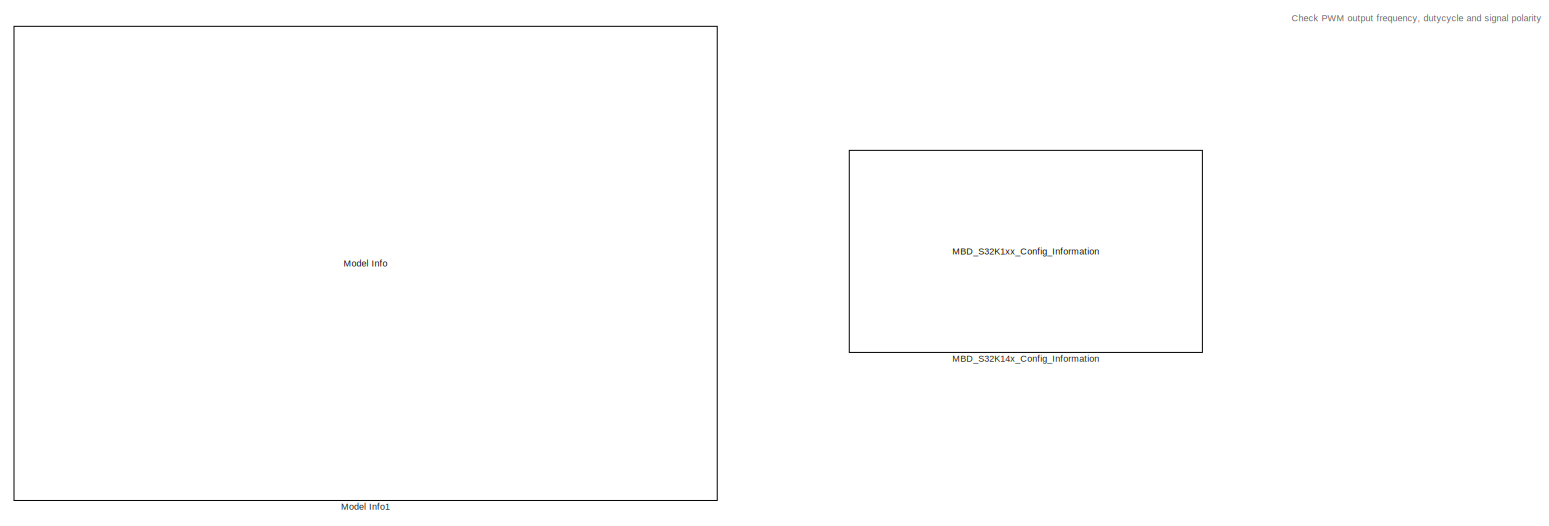
[diagram: root canvas - part 1/2, full width, top band]
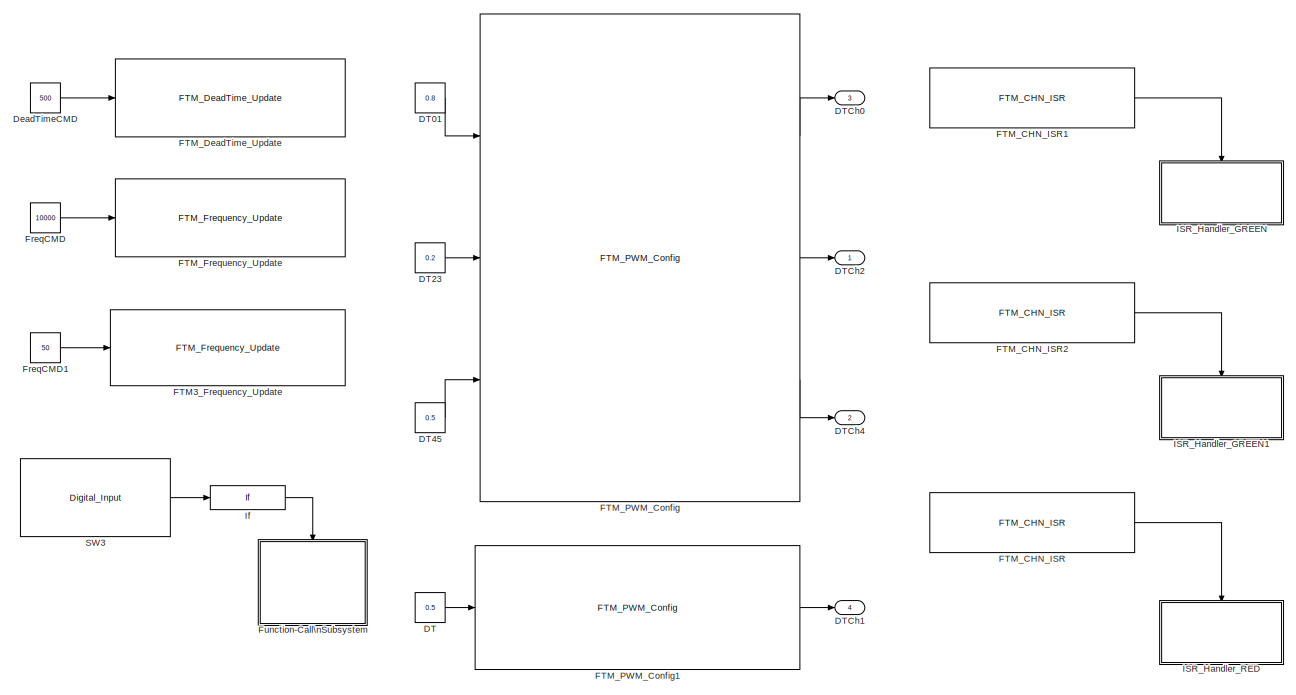
[diagram: root canvas - part 2/2, full width, bottom band]
MODEL ftm_complementary_pwm_s32k14x
KIND model
CONFIG InitFcn = mbd_s32k_consistency_checks(bdroot(gcs));
BLOCK [Constant] DT
  OutDataTypeStr = single
  SID = 1
  Value = 0.5
BLOCK [Constant] DT01
  OutDataTypeStr = single
  SID = 2
  Value = 0.8
BLOCK [Constant] DT23
  OutDataTypeStr = single
  SID = 3
  Value = 0.2
BLOCK [Constant] DT45
  OutDataTypeStr = single
  SID = 4
  Value = 0.5
BLOCK [Outport] DTCh0
  IconDisplay = Port number
  Port = 3
  SID = 42
BLOCK [Outport] DTCh1
  IconDisplay = Port number
  Port = 4
  SID = 43
BLOCK [Outport] DTCh2
  IconDisplay = Port number
  SID = 40
BLOCK [Outport] DTCh4
  IconDisplay = Port number
  Port = 2
  SID = 41
BLOCK [Constant] DeadTimeCMD
  OutDataTypeStr = uint32
  SID = 6
  Value = 500
BLOCK [Reference] FTM3_Frequency_Update  REF=mbd_s32k1xx_ec_toolbox/Motor Control Blocks/FTM Blocks/FTM_Frequency_Update
  Ports = [1]
  Priority = 1
  SID = 12
  SourceBlock = mbd_s32k1xx_ec_toolbox/Motor Control Blocks/FTM Blocks/FTM_Frequency_Update
  SourceType = FTM_s32k_freq_update_block
  ftmModule = 0
  ftmPwmUnits = Hz
  mcuTargetUpdate = on
BLOCK [Reference] FTM_CHN_ISR  REF=mbd_s32k1xx_ec_toolbox/Motor Control Blocks/FTM Blocks/FTM_CHN_ISR
  Ports = [0, 1]
  Priority = 10
  SID = 13
  SourceBlock = mbd_s32k1xx_ec_toolbox/Motor Control Blocks/FTM Blocks/FTM_CHN_ISR
  SourceType = FTM_s32k_chn_isr_block
  channel = 0
  ftmModule = 0
  isrlevel = 2
  mcuTargetUpdate = on
BLOCK [Reference] FTM_CHN_ISR1  REF=mbd_s32k1xx_ec_toolbox/Motor Control Blocks/FTM Blocks/FTM_CHN_ISR
  Ports = [0, 1]
  Priority = 10
  SID = 14
  SourceBlock = mbd_s32k1xx_ec_toolbox/Motor Control Blocks/FTM Blocks/FTM_CHN_ISR
  SourceType = FTM_s32k_chn_isr_block
  channel = 0
  ftmModule = 3
  isrlevel = 1
  mcuTargetUpdate = on
BLOCK [Reference] FTM_CHN_ISR2  REF=mbd_s32k1xx_ec_toolbox/Motor Control Blocks/FTM Blocks/FTM_CHN_ISR
  Ports = [0, 1]
  Priority = 10
  SID = 61
  SourceBlock = mbd_s32k1xx_ec_toolbox/Motor Control Blocks/FTM Blocks/FTM_CHN_ISR
  SourceType = FTM_s32k_chn_isr_block
  channel = 1
  ftmModule = 3
  isrlevel = 1
  mcuTargetUpdate = on
BLOCK [Reference] FTM_DeadTime_Update  REF=mbd_s32k1xx_ec_toolbox/Motor Control Blocks/FTM Blocks/FTM_DeadTime_Update
  Ports = [1]
  Priority = 1
  SID = 15
  SourceBlock = mbd_s32k1xx_ec_toolbox/Motor Control Blocks/FTM Blocks/FTM_DeadTime_Update
  SourceType = FTM_s32k_dead_time_update_block
  deadtimePrescaler = Divide by 1
  deadtimeUnits = Nanoseconds
  ftmModule = 0
  mcuTargetUpdate = on
BLOCK [Reference] FTM_Frequency_Update  REF=mbd_s32k1xx_ec_toolbox/Motor Control Blocks/FTM Blocks/FTM_Frequency_Update
  Ports = [1]
  Priority = 1
  SID = 16
  SourceBlock = mbd_s32k1xx_ec_toolbox/Motor Control Blocks/FTM Blocks/FTM_Frequency_Update
  SourceType = FTM_s32k_freq_update_block
  ftmModule = 0
  ftmPwmUnits = Hz
  mcuTargetUpdate = on
BLOCK [Reference] FTM_PWM_Config  REF=mbd_s32k1xx_ec_toolbox/Motor Control Blocks/FTM Blocks/FTM_PWM_Config
  Ports = [3, 3]
  Priority = 1
  SID = 54
  SourceBlock = mbd_s32k1xx_ec_toolbox/Motor Control Blocks/FTM Blocks/FTM_PWM_Config
  SourceType = FTM_s32k_pwm_config_block
  chTrigger0 = on
  chTrigger1 = on
  chTrigger2 = off
  chTrigger3 = off
  chTrigger4 = off
  chTrigger5 = off
  chTrigger6 = off
  chTrigger7 = off
  chan0En = on
  chan0Type = Complementary
  chan2En = on
  chan2Type = Complementary
  chan4En = on
  chan4Type = Complementary
  chan6En = off
  chan6Type = Independent
  chnMatch0 = off
  chnMatch1 = off
  chnMatch2 = off
  chnMatch3 = off
  chnMatch4 = off
  chnMatch5 = off
  chnMatch6 = off
  chnMatch7 = off
  deadtimeNs = 500
  deadtimePrescaler = Divide by 1
  deadtimeTicks = 40
  deadtimeUnits = Nanoseconds
  dutyCycleCh0 = 0.25
  dutyCycleCh1 = 0.25
  dutyCycleCh2 = 0.25
  dutyCycleCh3 = 0.25
  dutyCycleCh4 = 0.25
  dutyCycleCh5 = 0.25
  dutyCycleCh6 = 0.25
  dutyCycleCh7 = 0.25
  dutyCycleSim = on
  fault_disen_0 = off
  fault_disen_1 = off
  fault_disen_2 = off
  fault_disen_3 = off
  fault_filter_0 = off
  fault_filter_1 = off
  fault_filter_2 = off
  fault_filter_3 = off
  fault_pin_0 = None
  fault_pin_1 = None
  fault_pin_2 = None
  fault_pin_3 = None
  fault_polarity_0 = Active High
  fault_polarity_1 = Active high
  fault_polarity_2 = Active high
  fault_polarity_3 = Active high
  ftmMode = Edge-Aligned PWM
  ftmModule = 3
  ftmPeriod = 8000
  ftmPrescaler = Divide by 1
  ftmPwmUnits = Hz
  ftmSourceClock = 80 MHz
  initTrigger = off
  mcuTargetUpdate = on
  outFrequency = 10000
  outputComplem0 = Main inverted
  outputComplem2 = Main inverted
  outputComplem4 = Main inverted
  outputComplem6 = Main duplicated
  outputLevel0 = Low
  outputLevel1 = Low
  outputLevel2 = Low
  outputLevel3 = Low
  outputLevel4 = Low
  outputLevel5 = Low
  outputLevel6 = Low
  outputLevel7 = Low
  pinFtmCh0 = PTB8: [FTM3_CH0 | FTM Channel]
  pinFtmCh1 = PTB9: [FTM3_CH1 | FTM Channel]
  pinFtmCh2 = PTB10: [FTM3_CH2 | FTM Channel]
  pinFtmCh3 = PTB11: [FTM3_CH3 | FTM Channel]
  pinFtmCh4 = PTC10: [FTM3_CH4 | FTM Channel]
  pinFtmCh5 = PTC11: [FTM3_CH5 | FTM Channel]
  pinFtmCh6 = PTC12: [FTM3_CH6 | FTM Channel]
  pinFtmCh7 = None
  pinPolCh0 = Active High
  pinPolCh1 = Active Low
  pinPolCh2 = Active Low
  pinPolCh3 = Active Low
  pinPolCh4 = Active High
  pinPolCh5 = Active Low
  pinPolCh6 = Active Low
  pinPolCh7 = Active Low
  pwmFaultClearing = Fault control disabled
  pwmFaultFilterValue = 0
  pwmFaultInterrupt = off
  pwmFaultPinState = Safe Value
  pwmFaultPriority = 15
  pwmFaultProtection = off
  pwmSyncAutoClear = on
  pwmSyncCounterInitial = System Clock
  pwmSyncHwRouting = TRGMUX_FTM7
  pwmSyncInvert = System Clock
  pwmSyncMaxLoad = on
  pwmSyncMinLoad = on
  pwmSyncOutControl = System Clock
  pwmSyncOutMask = System Clock
  pwmSyncPoints = Update now
  pwmSyncTrg = Software trigger
  pwmSyncTrg0 = off
  pwmSyncTrg1 = off
  pwmSyncTrg2 = off
  reloadEnable = off
  reloadFrequency = 0
  reloadHCR = 0
  reloadHalfCycle = off
  reloadPriority = 15
  showAdvOpt = on
  startAfterInit = on
  swcontrol_enable = off
BLOCK [Reference] FTM_PWM_Config1  REF=mbd_s32k1xx_ec_toolbox/Motor Control Blocks/FTM Blocks/FTM_PWM_Config
  Ports = [1, 1]
  Priority = 1
  SID = 55
  SourceBlock = mbd_s32k1xx_ec_toolbox/Motor Control Blocks/FTM Blocks/FTM_PWM_Config
  SourceType = FTM_s32k_pwm_config_block
  chTrigger0 = on
  chTrigger1 = off
  chTrigger2 = off
  chTrigger3 = off
  chTrigger4 = off
  chTrigger5 = off
  chTrigger6 = off
  chTrigger7 = off
  chan0En = on
  chan0Type = Complementary
  chan2En = off
  chan2Type = Independent
  chan4En = off
  chan4Type = Independent
  chan6En = off
  chan6Type = Independent
  chnMatch0 = off
  chnMatch1 = off
  chnMatch2 = off
  chnMatch3 = off
  chnMatch4 = off
  chnMatch5 = off
  chnMatch6 = off
  chnMatch7 = off
  deadtimeNs = 0
  deadtimePrescaler = Divide by 1
  deadtimeTicks = 0
  deadtimeUnits = Nanoseconds
  dutyCycleCh0 = 0.25
  dutyCycleCh1 = 0.25
  dutyCycleCh2 = 0.25
  dutyCycleCh3 = 0.25
  dutyCycleCh4 = 0.25
  dutyCycleCh5 = 0.25
  dutyCycleCh6 = 0.25
  dutyCycleCh7 = 0.25
  dutyCycleSim = on
  fault_disen_0 = off
  fault_disen_1 = off
  fault_disen_2 = off
  fault_disen_3 = off
  fault_filter_0 = off
  fault_filter_1 = off
  fault_filter_2 = off
  fault_filter_3 = off
  fault_pin_0 = None
  fault_pin_1 = None
  fault_pin_2 = None
  fault_pin_3 = None
  fault_polarity_0 = Active High
  fault_polarity_1 = Active high
  fault_polarity_2 = Active high
  fault_polarity_3 = Active high
  ftmMode = Edge-Aligned PWM
  ftmModule = 0
  ftmPeriod = 25000
  ftmPrescaler = Divide by 64
  ftmPwmUnits = Hz
  ftmSourceClock = 80 MHz
  initTrigger = off
  mcuTargetUpdate = on
  outFrequency = 50
  outputComplem0 = Main duplicated
  outputComplem2 = Main duplicated
  outputComplem4 = Main duplicated
  outputComplem6 = Main duplicated
  outputLevel0 = Low
  outputLevel1 = Low
  outputLevel2 = Low
  outputLevel3 = Low
  outputLevel4 = Low
  outputLevel5 = Low
  outputLevel6 = Low
  outputLevel7 = Low
  pinFtmCh0 = PTC0: [FTM0_CH0 | FTM Channel]
  pinFtmCh1 = PTC1: [FTM0_CH1 | FTM Channel]
  pinFtmCh2 = PTB14: [FTM0_CH2 | FTM Channel]
  pinFtmCh3 = None
  pinFtmCh4 = PTB4: [FTM0_CH4 | FTM Channel]
  pinFtmCh5 = None
  pinFtmCh6 = PTA17: [FTM0_CH6 | FTM Channel]
  pinFtmCh7 = None
  pinPolCh0 = Active Low
  pinPolCh1 = Active Low
  pinPolCh2 = Active Low
  pinPolCh3 = Active Low
  pinPolCh4 = Active Low
  pinPolCh5 = Active Low
  pinPolCh6 = Active Low
  pinPolCh7 = Active Low
  pwmFaultClearing = Fault control disabled
  pwmFaultFilterValue = 0
  pwmFaultInterrupt = off
  pwmFaultPinState = Safe Value
  pwmFaultPriority = 15
  pwmFaultProtection = off
  pwmSyncAutoClear = on
  pwmSyncCounterInitial = System Clock
  pwmSyncHwRouting = TRGMUX_FTM7
  pwmSyncInvert = System Clock
  pwmSyncMaxLoad = on
  pwmSyncMinLoad = on
  pwmSyncOutControl = System Clock
  pwmSyncOutMask = System Clock
  pwmSyncPoints = Update now
  pwmSyncTrg = Software trigger
  pwmSyncTrg0 = off
  pwmSyncTrg1 = off
  pwmSyncTrg2 = off
  reloadEnable = off
  reloadFrequency = 0
  reloadHCR = 0
  reloadHalfCycle = off
  reloadPriority = 15
  showAdvOpt = on
  startAfterInit = on
  swcontrol_enable = off
BLOCK [Constant] FreqCMD
  OutDataTypeStr = uint32
  SID = 17
  Value = 10000
BLOCK [Constant] FreqCMD1
  OutDataTypeStr = uint32
  SID = 18
  Value = 50
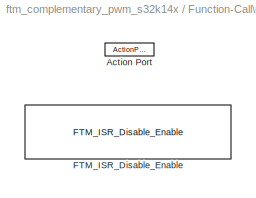
BLOCK [SubSystem] Function-Call\nSubsystem
  Ports = [0, 0, 0, 0, 0, 0, 0, 1]
  RequestExecContextInheritance = off
  SID = 19
  TreatAsAtomicUnit = on
  Variant = off
BLOCK [ActionPort] Function-Call\nSubsystem/Action Port
  SID = 20
BLOCK [Reference] Function-Call\nSubsystem/FTM_ISR_Disable_Enable  REF=mbd_s32k1xx_ec_toolbox/Motor Control Blocks/FTM Blocks/FTM_ISR_Disable_Enable
  Ports = []
  SID = 21
  SourceBlock = mbd_s32k1xx_ec_toolbox/Motor Control Blocks/FTM Blocks/FTM_ISR_Disable_Enable
  SourceType = FTM_s32k_isr_disen
  channel = channel 0
  dis = interrupt source Disable
  ftmModule = 0
  mcuTargetUpdate = 0
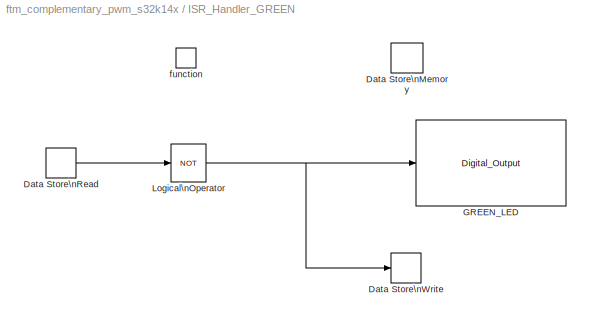
BLOCK [SubSystem] ISR_Handler_GREEN
  Ports = [0, 0, 0, 1]
  RequestExecContextInheritance = off
  SID = 22
  Variant = off
BLOCK [DataStoreMemory] ISR_Handler_GREEN/Data Store\nMemory
  OutDataTypeStr = boolean
  ReadBeforeWriteMsg = warning
  SID = 24
  ShowAdditionalParam = off
  WriteAfterReadMsg = warning
  WriteAfterWriteMsg = warning
BLOCK [DataStoreRead] ISR_Handler_GREEN/Data Store\nRead
  Ports = [0, 1]
  SID = 25
BLOCK [DataStoreWrite] ISR_Handler_GREEN/Data Store\nWrite
  Ports = [1]
  SID = 26
BLOCK [Reference] ISR_Handler_GREEN/GREEN_LED  REF=mbd_s32k1xx_ec_toolbox/GPIO Blocks/Digital_Output
  Ports = [1]
  SID = 27
  SourceBlock = mbd_s32k1xx_ec_toolbox/GPIO Blocks/Digital_Output
  SourceType = gpio_s32k_output
  drive_strength = High
  gpio_pin = PTD16: [PTD16 | Port D I/O]
  init_val = Low
BLOCK [Logic] ISR_Handler_GREEN/Logical\nOperator
  AllPortsSameDT = off
  Operator = NOT
  OutDataTypeStr = boolean
  Ports = [1, 1]
  SID = 28
BLOCK [TriggerPort] ISR_Handler_GREEN/function
  Ports = []
  SID = 23
  StatesWhenEnabling = held
  TriggerType = function-call
  VariantControl = Variant
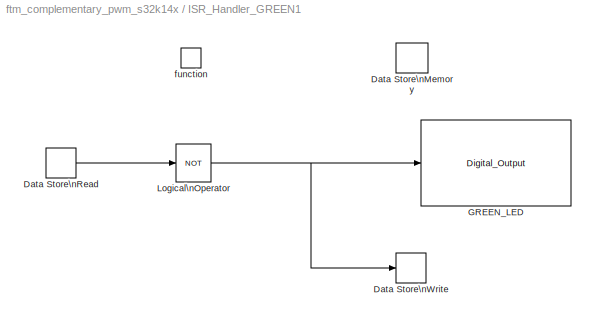
BLOCK [SubSystem] ISR_Handler_GREEN1
  Ports = [0, 0, 0, 1]
  RequestExecContextInheritance = off
  SID = 62
  Variant = off
BLOCK [DataStoreMemory] ISR_Handler_GREEN1/Data Store\nMemory
  DataStoreName = C
  OutDataTypeStr = boolean
  ReadBeforeWriteMsg = warning
  SID = 64
  ShowAdditionalParam = off
  WriteAfterReadMsg = warning
  WriteAfterWriteMsg = warning
BLOCK [DataStoreRead] ISR_Handler_GREEN1/Data Store\nRead
  DataStoreName = C
  Ports = [0, 1]
  SID = 70
BLOCK [DataStoreWrite] ISR_Handler_GREEN1/Data Store\nWrite
  DataStoreName = C
  Ports = [1]
  SID = 69
BLOCK [Reference] ISR_Handler_GREEN1/GREEN_LED  REF=mbd_s32k1xx_ec_toolbox/GPIO Blocks/Digital_Output
  Ports = [1]
  SID = 67
  SourceBlock = mbd_s32k1xx_ec_toolbox/GPIO Blocks/Digital_Output
  SourceType = gpio_s32k_output
  drive_strength = High
  gpio_pin = PTD0: [PTD0 | Port D I/O]
  init_val = Low
BLOCK [Logic] ISR_Handler_GREEN1/Logical\nOperator
  AllPortsSameDT = off
  Operator = NOT
  OutDataTypeStr = boolean
  Ports = [1, 1]
  SID = 68
BLOCK [TriggerPort] ISR_Handler_GREEN1/function
  Ports = []
  SID = 63
  StatesWhenEnabling = held
  TriggerType = function-call
  VariantControl = Variant
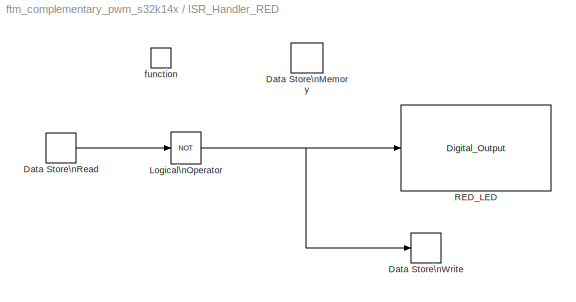
BLOCK [SubSystem] ISR_Handler_RED
  Ports = [0, 0, 0, 1]
  RequestExecContextInheritance = off
  SID = 29
  Variant = off
BLOCK [DataStoreMemory] ISR_Handler_RED/Data Store\nMemory
  DataStoreName = B
  OutDataTypeStr = boolean
  ReadBeforeWriteMsg = warning
  SID = 31
  ShowAdditionalParam = off
  WriteAfterReadMsg = warning
  WriteAfterWriteMsg = warning
BLOCK [DataStoreRead] ISR_Handler_RED/Data Store\nRead
  DataStoreName = B
  Ports = [0, 1]
  SID = 32
BLOCK [DataStoreWrite] ISR_Handler_RED/Data Store\nWrite
  DataStoreName = B
  Ports = [1]
  SID = 33
BLOCK [Logic] ISR_Handler_RED/Logical\nOperator
  AllPortsSameDT = off
  Operator = NOT
  OutDataTypeStr = boolean
  Ports = [1, 1]
  SID = 34
BLOCK [Reference] ISR_Handler_RED/RED_LED  REF=mbd_s32k1xx_ec_toolbox/GPIO Blocks/Digital_Output
  Ports = [1]
  SID = 35
  SourceBlock = mbd_s32k1xx_ec_toolbox/GPIO Blocks/Digital_Output
  SourceType = gpio_s32k_output
  drive_strength = High
  gpio_pin = PTD15: [PTD15 | Port D I/O]
  init_val = Low
BLOCK [TriggerPort] ISR_Handler_RED/function
  Ports = []
  SID = 30
  StatesWhenEnabling = held
  TriggerType = function-call
  VariantControl = Variant
BLOCK [If] If
  IfExpression = u1 == 1
  Ports = [1, 1]
  SID = 36
  ShowElse = off
BLOCK [Reference] MBD_S32K14x_Config_Information  REF=mbd_s32k1xx_ec_toolbox/MBD_S32K1xx_Config_Information
  ADC_PcrCheckEnDis = on
  AMMCLIB_PcrCheckEnDis = on
  CMP_PcrCheckEnDis = on
  CSEc_PcrCheckEnDis = on
  ConfigParams_PcrCheckEnDis = on
  FM_PcrCheckEnDis = on
  FTM_Dual_Edge_Inputs_PcrCheckEnDis = on
  FTM_Hall_Sensor_Inputs_PcrCheckEnDis = on
  FTM_Input_Edge_Inputs_PcrCheckEnDis = on
  FTM_PWM_PcrCheckEnDis = on
  FTM_Quadrature_Inputs_PcrCheckEnDis = on
  FlexCAN_PcrCheckEnDis = on
  FlexIO_PcrCheckEnDis = on
  GPIO_InputPcrCheckEnDis = on
  GPIO_OutputPcrCheckEnDis = on
  LIN_PcrCheckEnDis = on
  LPI2C_PcrCheckEnDis = on
  LPSPI_PcrCheckEnDis = on
  LPTMR_PcrCheckEnDis = on
  LPUART_PcrCheckEnDis = on
  ModelRef_PcrCheckEnDis = on
  PDB0_PcrCheckEnDis = on
  PIT_PcrCheckEnDis = on
  Ports = []
  Profile_PcrCheckEnDis = on
  RTC_PcrCheckEnDis = on
  SBC_PcrCheckEnDis = on
  SID = 57
  SourceBlock = mbd_s32k1xx_ec_toolbox/MBD_S32K1xx_Config_Information
  SourceType = MBDTBX_EC_S32K
  WDOG_PcrCheckEnDis = on
  config_params = []
  disp_str = Target : S32K144-64KB_SRAM\nPackage : 100-pin\nSystem clock : 80 MHz\nXTAL clock : External 8 MHz\nCompiler : IAR\nTarget Type : FLASH\nDownload Code after build : off\nStep Tick Interrupt Priority : 15
  ds_import_enable = on
  eDMA_PcrCheckEnDis = on
  gcc_target_assemble_opts = -mcpu=cortex-m4 -mthumb -mfloat-abi=hard -mfpu=fpv4-sp-d16 -g
  gcc_target_compile_opts = -mcpu=cortex-m4 -mthumb -mfloat-abi=hard -mfpu=fpv4-sp-d16 -O1 -g -gstrict-dwarf
  gcc_target_default_lcf = on
  gcc_target_link_opts = -mcpu=cortex-m4 -mthumb -mfloat-abi=hard -mfpu=fpv4-sp-d16
  gcc_target_user_lcf = S32K144_48_flash.ld
  ghs_target_assemble_opts = -cpu=cortexm4f -fpu=vfpv4_d16
  ghs_target_compile_opts = -cpu=cortexm4f -thumb -DARM_MATH_CM4 -fpu=vfpv4_d16 -fsingle -Ogeneral -Wundef -Wimplicit-int -Wshadow -Wtrigraphs --no_commons --gnu_asm -gnu99 -gdwarf-2 -G
  ghs_target_default_lcf = on
  ghs_target_link_opts = -cpu=cortexm4f -thumb -fpu=vfpv4_d16
  ghs_target_user_lcf = S32K144_48_flash.ld
  iar_target_assemble_opts = --cpu Cortex-M4F --thumb --fpu VFPv4_sp
  iar_target_compile_opts = --cpu=Cortex-M4F --thumb --fpu=VFPv4_sp -Ol -e --debug --dlib_config normal
  iar_target_default_lcf = on
  iar_target_link_opts = --no_exceptions --vfe --inline
  iar_target_user_lcf = S32K144_48_flash.icf
  mbdt_ver = 0
  mcu_steptick_prio = 15
  mcu_steptick_timer = LPIT Channel 0
  mcu_system_clock_freq = 80
  mcu_target_name = S32K144
  mcu_target_package = 100-LQFP
  mcu_target_sram_size = 48KB
  mcu_xtal_freq = External 8
  pil_download_enable = off
  pil_download_rate = 57600
  pil_opensda_drive = Custom
  pil_opensda_drive_custom = D
  pil_uart_instance = 0
  pil_uart_rx = PTA2: [LPUART0_RX | Receive]
  pil_uart_tx = PTA3: [LPUART0_TX | Transmit]
  rbl_com_port = Custom
  rbl_com_port_custom = COM1
  rbl_download_enable = on
  rbl_download_interface = OpenSDA
  rbl_restart_request = off
  rbl_start_delay = 5000
  target_compiler = GCC
  target_memory = FLASH
BLOCK [Reference] Model Info1  REF=simulink/Model-Wide\nUtilities/Model Info
  DisplayStringWithTags = Model Name: %<ModelName>\n\nDescription: %<Description>
  Frame = off
  HorizontalTextAlignment = Left
  LeftAlignmentValue = 0.02
  MaskDisplayString = Model Name: ftm_complementary_pwm_s32k14x\\n\\nDescription: This sample shows how to use FTM modules to generate PWM signals for the S32K144 MCUs using\\nthe Complementary PWM output mode.\\nThe model generates  Edge Aligned PWM signals on Ch0/Ch1, Ch2/Ch3 and Ch4/Ch5 outputs of the FTM3 module\\nand on Ch0/Ch1 outputs of the FTM0 module\\n\\nValidation:\\nConnect pin J1.5   (PTB8)  to the scope t...<+1154ch>
  Ports = []
  SID = 53
  SourceBlock = simulink/Model-Wide\nUtilities/Model Info
  SourceProductBaseCode = SL
  SourceProductName = Simulink
  SourceType = CMBlock
BLOCK [Reference] SW3  REF=mbd_s32k1xx_ec_toolbox/GPIO Blocks/Digital_Input
  Ports = [0, 1]
  SID = 39
  SourceBlock = mbd_s32k1xx_ec_toolbox/GPIO Blocks/Digital_Input
  SourceType = gpio_s32k_input
  gpio_pin = PTC12: [PTC12 | Port C I/O]
  passive_filter = on
  pull_resistor = None
ANNOTATION (root): \n \n Check PWM output frequency, dutycycle and signal polarity \n \n \n Check the deadband insertion delay between paired channels \n
LINE DT01:1 -> FTM_PWM_Config:1
LINE DT23:1 -> FTM_PWM_Config:2
LINE DT45:1 -> FTM_PWM_Config:3
LINE DT:1 -> FTM_PWM_Config1:1
LINE DeadTimeCMD:1 -> FTM_DeadTime_Update:1
LINE FTM_CHN_ISR1:1 -> ISR_Handler_GREEN:trigger
LINE FTM_CHN_ISR2:1 -> ISR_Handler_GREEN1:trigger
LINE FTM_CHN_ISR:1 -> ISR_Handler_RED:trigger
LINE FTM_PWM_Config1:1 -> DTCh1:1
LINE FTM_PWM_Config:1 -> DTCh0:1
LINE FTM_PWM_Config:2 -> DTCh2:1
LINE FTM_PWM_Config:3 -> DTCh4:1
LINE FreqCMD1:1 -> FTM3_Frequency_Update:1
LINE FreqCMD:1 -> FTM_Frequency_Update:1
LINE ISR_Handler_GREEN/Data Store\nRead:1 -> ISR_Handler_GREEN/Logical\nOperator:1
NET ISR_Handler_GREEN/Logical\nOperator:1 -> ISR_Handler_GREEN/Data Store\nWrite:1, ISR_Handler_GREEN/GREEN_LED:1
LINE ISR_Handler_GREEN1/Data Store\nRead:1 -> ISR_Handler_GREEN1/Logical\nOperator:1
NET ISR_Handler_GREEN1/Logical\nOperator:1 -> ISR_Handler_GREEN1/Data Store\nWrite:1, ISR_Handler_GREEN1/GREEN_LED:1
LINE ISR_Handler_RED/Data Store\nRead:1 -> ISR_Handler_RED/Logical\nOperator:1
NET ISR_Handler_RED/Logical\nOperator:1 -> ISR_Handler_RED/Data Store\nWrite:1, ISR_Handler_RED/RED_LED:1
LINE If:1 -> Function-Call\nSubsystem:ifaction
LINE SW3:1 -> If:1
note: NET lines group one-source signal fan-out (src -> all destinations, sorted); 1:1 wires keep LINE
